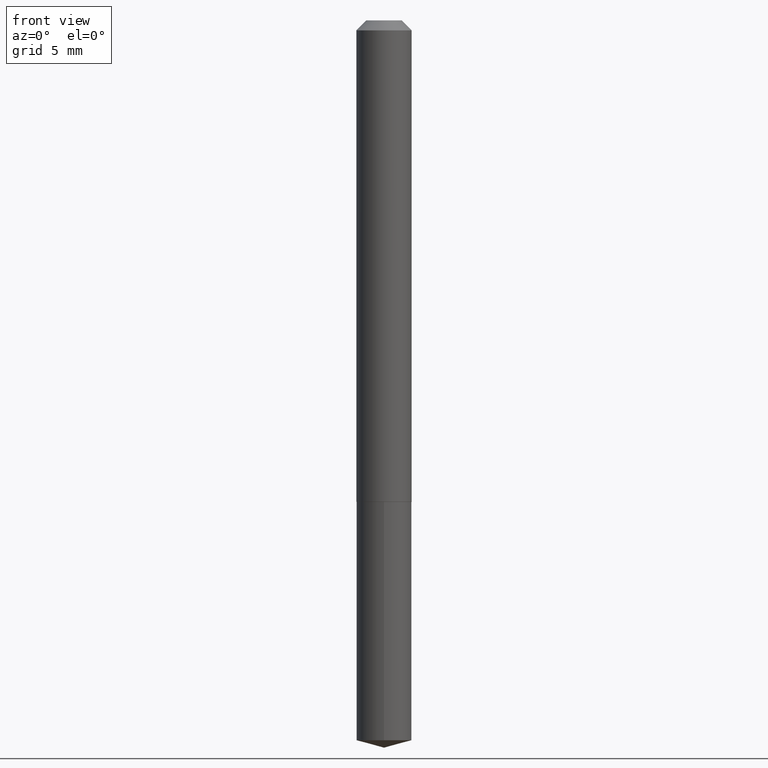
[diagram: clean part render]
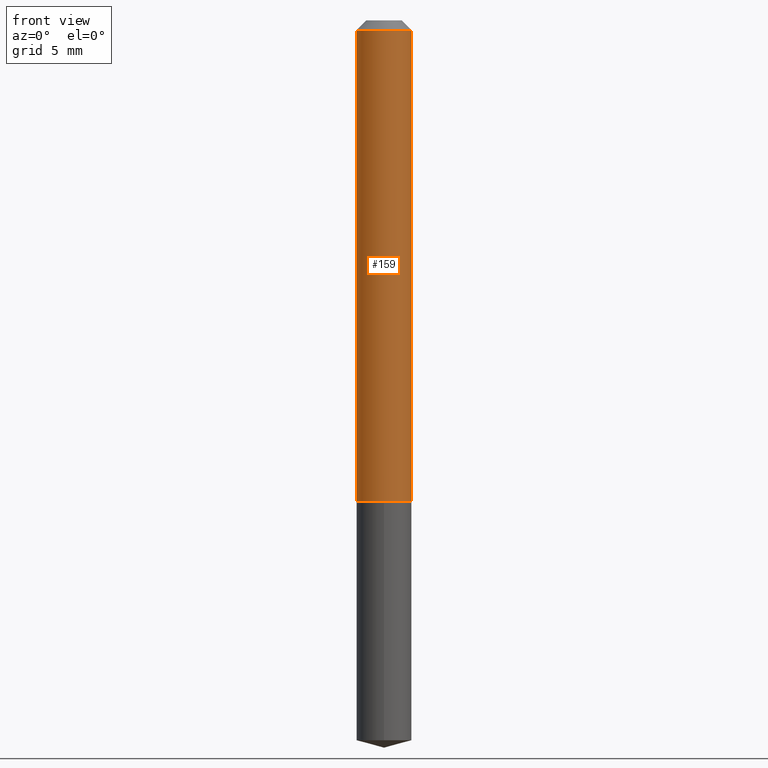
[diagram: same view with one face highlighted and labeled with its STEP entity id]
A machine part, front view. The second image highlights one B-rep face of the part: STEP entity #159.
In plain terms, the highlighted cylindrical surface (edge-blend (fillet) strip) has radius 2.1996 mm, axis along (-0, 0, 1).
Its self-contained STEP definition (entity closure, byte-faithful):
#26 = VERTEX_POINT ( 'NONE', #156 ) ;
#28 = VECTOR ( 'NONE', #221, 39.37007874015748143 ) ;
#43 = EDGE_CURVE ( 'NONE', #26, #148, #256, .T. ) ;
#59 = VERTEX_POINT ( 'NONE', #120 ) ;
#66 = CARTESIAN_POINT ( 'NONE',  ( -0.08660000000000017684, -4.661345738225397323E-15, -1.511300000000000088 ) ) ;
#70 = DIRECTION ( 'NONE',  ( -2.445468806185136597E-29, 3.491481338843145583E-15, 1.000000000000000000 ) ) ;
#92 = EDGE_CURVE ( 'NONE', #287, #26, #271, .T. ) ;
#93 = CARTESIAN_POINT ( 'NONE',  ( 0.08660000000000007969, -6.047245678876313188E-16, 4.222769087839284057E-30 ) ) ;
#100 = FACE_OUTER_BOUND ( 'NONE', #385, .T. ) ;
#120 = CARTESIAN_POINT ( 'NONE',  ( 0.08660000000000017684, -5.881400315281277448E-15, -1.511300000000000088 ) ) ;
#125 = VECTOR ( 'NONE', #323, 39.37007874015748143 ) ;
#133 = EDGE_CURVE ( 'NONE', #59, #148, #357, .T. ) ;
#137 = CIRCLE ( 'NONE', #200, 0.08660000000000017684 ) ;
#148 = VERTEX_POINT ( 'NONE', #307 ) ;
#152 = AXIS2_PLACEMENT_3D ( 'NONE', #244, #70, #161 ) ;
#156 = CARTESIAN_POINT ( 'NONE',  ( -0.08659999999999998255, -2.077562260447999006E-15, -0.03125000000000021511 ) ) ;
#159 = ADVANCED_FACE ( 'NONE', ( #100 ), #219, .T. ) ;
#160 = CARTESIAN_POINT ( 'NONE',  ( -0.08660000000000007969, 6.153300091682473272E-16, -4.259797788160751610E-30 ) ) ;
#161 = DIRECTION ( 'NONE',  ( 1.000000000000000000, -6.982962677686267499E-15, 4.876176775795935793E-29 ) ) ;
#163 = EDGE_CURVE ( 'NONE', #287, #59, #137, .T. ) ;
#174 = ORIENTED_EDGE ( 'NONE', *, *, #92, .F. ) ;
#200 = AXIS2_PLACEMENT_3D ( 'NONE', #368, #243, #282 ) ;
#203 = ORIENTED_EDGE ( 'NONE', *, *, #133, .T. ) ;
#219 = CYLINDRICAL_SURFACE ( 'NONE', #152, 0.08660000000000007969 ) ;
#221 = DIRECTION ( 'NONE',  ( -2.445468806185136877E-29, 3.491481338843145188E-15, 1.000000000000000000 ) ) ;
#226 = ORIENTED_EDGE ( 'NONE', *, *, #43, .F. ) ;
#242 = CARTESIAN_POINT ( 'NONE',  ( 7.642090019328603538E-31, -1.091087918388490390E-16, -0.03125000000000021511 ) ) ;
#243 = DIRECTION ( 'NONE',  ( -2.445468806185136597E-29, 3.491481338843145583E-15, 1.000000000000000000 ) ) ;
#244 = CARTESIAN_POINT ( 'NONE',  ( 0.000000000000000000, 0.000000000000000000, 0.000000000000000000 ) ) ;
#256 = CIRCLE ( 'NONE', #338, 0.08659999999999998255 ) ;
#271 = LINE ( 'NONE', #160, #125 ) ;
#282 = DIRECTION ( 'NONE',  ( 1.000000000000000000, -6.982962677686265133E-15, 0.000000000000000000 ) ) ;
#287 = VERTEX_POINT ( 'NONE', #66 ) ;
#307 = CARTESIAN_POINT ( 'NONE',  ( 0.08659999999999998255, -7.138333597264797291E-16, -0.03125000000000021511 ) ) ;
#321 = DIRECTION ( 'NONE',  ( -2.445468806185136597E-29, 3.491481338843145583E-15, 1.000000000000000000 ) ) ;
#323 = DIRECTION ( 'NONE',  ( -2.445468806185136877E-29, 3.491481338843145188E-15, 1.000000000000000000 ) ) ;
#338 = AXIS2_PLACEMENT_3D ( 'NONE', #242, #321, #355 ) ;
#344 = ORIENTED_EDGE ( 'NONE', *, *, #163, .T. ) ;
#355 = DIRECTION ( 'NONE',  ( 1.000000000000000000, -6.982962677686267499E-15, 0.000000000000000000 ) ) ;
#357 = LINE ( 'NONE', #93, #28 ) ;
#368 = CARTESIAN_POINT ( 'NONE',  ( 3.695837006787596715E-29, -5.276675747393645735E-15, -1.511300000000000088 ) ) ;
#385 = EDGE_LOOP ( 'NONE', ( #174, #344, #203, #226 ) ) ;